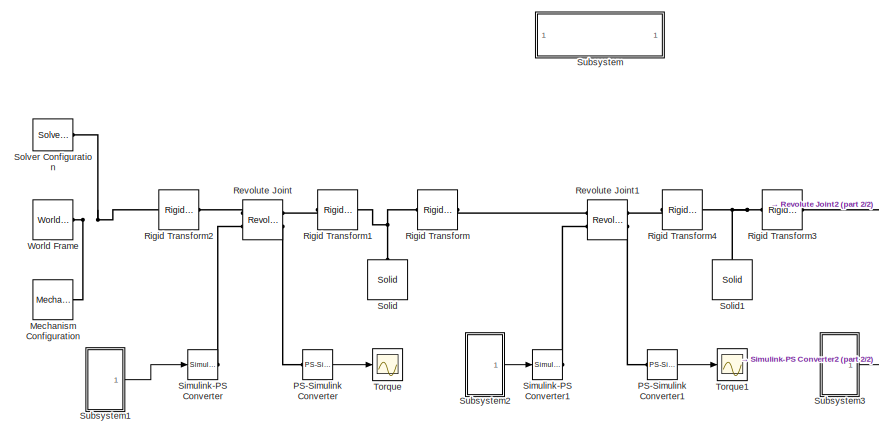
[diagram: root canvas - part 1/2, left side, full height]
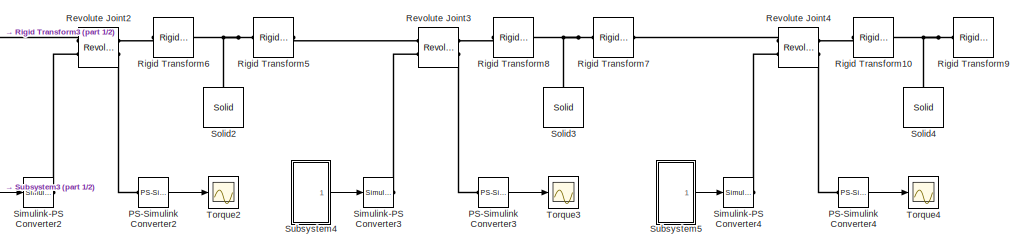
[diagram: root canvas - part 2/2, bottom right region]
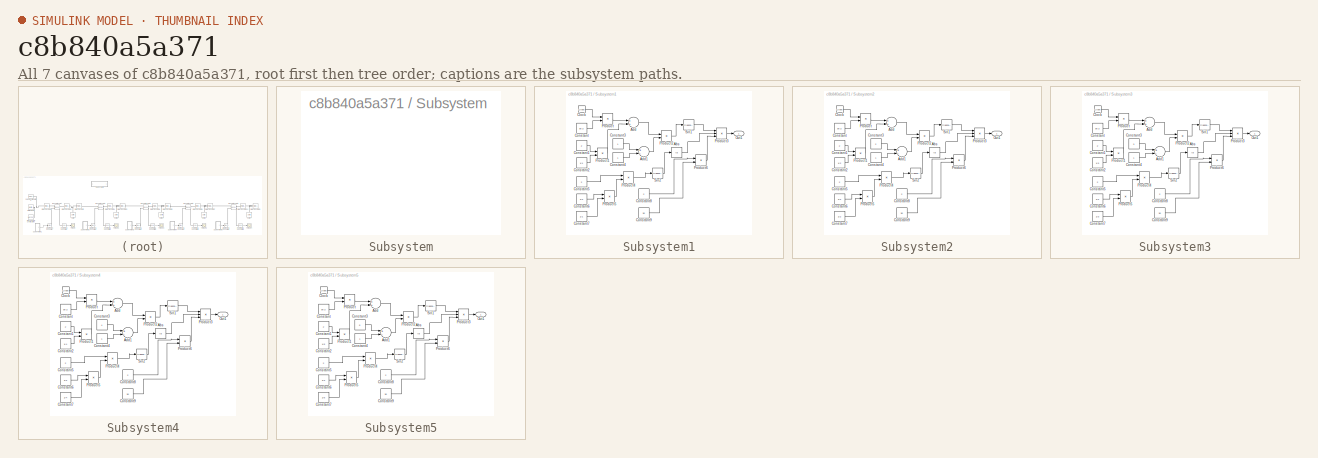
[diagram: thumbnail index - all 7 canvases of the model, root first then tree order]
MODEL slx_c8b840a5a371
KIND model
CONFIG AbsTol = auto
CONFIG EnableMultiTasking = on
CONFIG FixedStep = auto
CONFIG MaxStep = auto
CONFIG MinStep = auto
CONFIG PreLoadFcn = robotParameters;
CONFIG RelTol = 1e-3
CONFIG SampleTimeConstraint = Unconstrained
CONFIG Solver = VariableStepAuto
CONFIG SolverName = VariableStepAuto
CONFIG StartTime = 0.0
CONFIG StopTime = 10.0
BLOCK [Reference] Mechanism Configuration  REF=sm_lib/Utilities/Mechanism
Configuration
  Ports = [0, 0, 0, 0, 0, 0, 1]
  SourceBlock = sm_lib/Utilities/Mechanism\nConfiguration
  SourceProductBaseCode = MS
  SourceProductName = Simscape Multibody
  SourceType = Mechanism\nConfiguration
BLOCK [Reference] PS-Simulink Converter  REF=nesl_utility/PS-Simulink
Converter
  Ports = [0, 1, 0, 0, 0, 1]
  SourceBlock = nesl_utility/PS-Simulink\nConverter
  SourceProductBaseCode = SS
  SourceProductName = Simscape
  SourceType = PS-Simulink\nConverter
BLOCK [Reference] PS-Simulink Converter1  REF=nesl_utility/PS-Simulink
Converter
  Ports = [0, 1, 0, 0, 0, 1]
  SourceBlock = nesl_utility/PS-Simulink\nConverter
  SourceProductBaseCode = SS
  SourceProductName = Simscape
  SourceType = PS-Simulink\nConverter
BLOCK [Reference] PS-Simulink Converter2  REF=nesl_utility/PS-Simulink
Converter
  Ports = [0, 1, 0, 0, 0, 1]
  SourceBlock = nesl_utility/PS-Simulink\nConverter
  SourceProductBaseCode = SS
  SourceProductName = Simscape
  SourceType = PS-Simulink\nConverter
BLOCK [Reference] PS-Simulink Converter3  REF=nesl_utility/PS-Simulink
Converter
  Ports = [0, 1, 0, 0, 0, 1]
  SourceBlock = nesl_utility/PS-Simulink\nConverter
  SourceProductBaseCode = SS
  SourceProductName = Simscape
  SourceType = PS-Simulink\nConverter
BLOCK [Reference] PS-Simulink Converter4  REF=nesl_utility/PS-Simulink
Converter
  Ports = [0, 1, 0, 0, 0, 1]
  SourceBlock = nesl_utility/PS-Simulink\nConverter
  SourceProductBaseCode = SS
  SourceProductName = Simscape
  SourceType = PS-Simulink\nConverter
BLOCK [Reference] Revolute Joint  REF=sm_lib/Joints/Revolute Joint
  Ports = [0, 0, 0, 0, 0, 2, 2]
  SourceBlock = sm_lib/Joints/Revolute Joint
  SourceProductBaseCode = MS
  SourceProductName = Simscape Multibody
  SourceType = Revolute Joint
BLOCK [Reference] Revolute Joint1  REF=sm_lib/Joints/Revolute Joint
  Ports = [0, 0, 0, 0, 0, 2, 2]
  SourceBlock = sm_lib/Joints/Revolute Joint
  SourceProductBaseCode = MS
  SourceProductName = Simscape Multibody
  SourceType = Revolute Joint
BLOCK [Reference] Revolute Joint2  REF=sm_lib/Joints/Revolute Joint
  Ports = [0, 0, 0, 0, 0, 2, 2]
  SourceBlock = sm_lib/Joints/Revolute Joint
  SourceProductBaseCode = MS
  SourceProductName = Simscape Multibody
  SourceType = Revolute Joint
BLOCK [Reference] Revolute Joint3  REF=sm_lib/Joints/Revolute Joint
  Ports = [0, 0, 0, 0, 0, 2, 2]
  SourceBlock = sm_lib/Joints/Revolute Joint
  SourceProductBaseCode = MS
  SourceProductName = Simscape Multibody
  SourceType = Revolute Joint
BLOCK [Reference] Revolute Joint4  REF=sm_lib/Joints/Revolute Joint
  Ports = [0, 0, 0, 0, 0, 2, 2]
  SourceBlock = sm_lib/Joints/Revolute Joint
  SourceProductBaseCode = MS
  SourceProductName = Simscape Multibody
  SourceType = Revolute Joint
BLOCK [Reference] Rigid Transform  REF=sm_lib/Frames and
Transforms/Rigid
Transform
  Ports = [0, 0, 0, 0, 0, 1, 1]
  SourceBlock = sm_lib/Frames and\nTransforms/Rigid\nTransform
  SourceProductBaseCode = MS
  SourceProductName = Simscape Multibody
  SourceType = Rigid\nTransform
BLOCK [Reference] Rigid Transform1  REF=sm_lib/Frames and
Transforms/Rigid
Transform
  Ports = [0, 0, 0, 0, 0, 1, 1]
  SourceBlock = sm_lib/Frames and\nTransforms/Rigid\nTransform
  SourceProductBaseCode = MS
  SourceProductName = Simscape Multibody
  SourceType = Rigid\nTransform
BLOCK [Reference] Rigid Transform10  REF=sm_lib/Frames and
Transforms/Rigid
Transform
  Ports = [0, 0, 0, 0, 0, 1, 1]
  SourceBlock = sm_lib/Frames and\nTransforms/Rigid\nTransform
  SourceProductBaseCode = MS
  SourceProductName = Simscape Multibody
  SourceType = Rigid\nTransform
BLOCK [Reference] Rigid Transform2  REF=sm_lib/Frames and
Transforms/Rigid
Transform
  Ports = [0, 0, 0, 0, 0, 1, 1]
  SourceBlock = sm_lib/Frames and\nTransforms/Rigid\nTransform
  SourceProductBaseCode = MS
  SourceProductName = Simscape Multibody
  SourceType = Rigid\nTransform
BLOCK [Reference] Rigid Transform3  REF=sm_lib/Frames and
Transforms/Rigid
Transform
  Ports = [0, 0, 0, 0, 0, 1, 1]
  SourceBlock = sm_lib/Frames and\nTransforms/Rigid\nTransform
  SourceProductBaseCode = MS
  SourceProductName = Simscape Multibody
  SourceType = Rigid\nTransform
BLOCK [Reference] Rigid Transform4  REF=sm_lib/Frames and
Transforms/Rigid
Transform
  Ports = [0, 0, 0, 0, 0, 1, 1]
  SourceBlock = sm_lib/Frames and\nTransforms/Rigid\nTransform
  SourceProductBaseCode = MS
  SourceProductName = Simscape Multibody
  SourceType = Rigid\nTransform
BLOCK [Reference] Rigid Transform5  REF=sm_lib/Frames and
Transforms/Rigid
Transform
  Ports = [0, 0, 0, 0, 0, 1, 1]
  SourceBlock = sm_lib/Frames and\nTransforms/Rigid\nTransform
  SourceProductBaseCode = MS
  SourceProductName = Simscape Multibody
  SourceType = Rigid\nTransform
BLOCK [Reference] Rigid Transform6  REF=sm_lib/Frames and
Transforms/Rigid
Transform
  Ports = [0, 0, 0, 0, 0, 1, 1]
  SourceBlock = sm_lib/Frames and\nTransforms/Rigid\nTransform
  SourceProductBaseCode = MS
  SourceProductName = Simscape Multibody
  SourceType = Rigid\nTransform
BLOCK [Reference] Rigid Transform7  REF=sm_lib/Frames and
Transforms/Rigid
Transform
  Ports = [0, 0, 0, 0, 0, 1, 1]
  SourceBlock = sm_lib/Frames and\nTransforms/Rigid\nTransform
  SourceProductBaseCode = MS
  SourceProductName = Simscape Multibody
  SourceType = Rigid\nTransform
BLOCK [Reference] Rigid Transform8  REF=sm_lib/Frames and
Transforms/Rigid
Transform
  Ports = [0, 0, 0, 0, 0, 1, 1]
  SourceBlock = sm_lib/Frames and\nTransforms/Rigid\nTransform
  SourceProductBaseCode = MS
  SourceProductName = Simscape Multibody
  SourceType = Rigid\nTransform
BLOCK [Reference] Rigid Transform9  REF=sm_lib/Frames and
Transforms/Rigid
Transform
  Ports = [0, 0, 0, 0, 0, 1, 1]
  SourceBlock = sm_lib/Frames and\nTransforms/Rigid\nTransform
  SourceProductBaseCode = MS
  SourceProductName = Simscape Multibody
  SourceType = Rigid\nTransform
BLOCK [Reference] Simulink-PS Converter  REF=nesl_utility/Simulink-PS
Converter
  Ports = [1, 0, 0, 0, 0, 0, 1]
  SourceBlock = nesl_utility/Simulink-PS\nConverter
  SourceProductBaseCode = SS
  SourceProductName = Simscape
  SourceType = Simulink-PS\nConverter
BLOCK [Reference] Simulink-PS Converter1  REF=nesl_utility/Simulink-PS
Converter
  Ports = [1, 0, 0, 0, 0, 0, 1]
  SourceBlock = nesl_utility/Simulink-PS\nConverter
  SourceProductBaseCode = SS
  SourceProductName = Simscape
  SourceType = Simulink-PS\nConverter
BLOCK [Reference] Simulink-PS Converter2  REF=nesl_utility/Simulink-PS
Converter
  Ports = [1, 0, 0, 0, 0, 0, 1]
  SourceBlock = nesl_utility/Simulink-PS\nConverter
  SourceProductBaseCode = SS
  SourceProductName = Simscape
  SourceType = Simulink-PS\nConverter
BLOCK [Reference] Simulink-PS Converter3  REF=nesl_utility/Simulink-PS
Converter
  Ports = [1, 0, 0, 0, 0, 0, 1]
  SourceBlock = nesl_utility/Simulink-PS\nConverter
  SourceProductBaseCode = SS
  SourceProductName = Simscape
  SourceType = Simulink-PS\nConverter
BLOCK [Reference] Simulink-PS Converter4  REF=nesl_utility/Simulink-PS
Converter
  Ports = [1, 0, 0, 0, 0, 0, 1]
  SourceBlock = nesl_utility/Simulink-PS\nConverter
  SourceProductBaseCode = SS
  SourceProductName = Simscape
  SourceType = Simulink-PS\nConverter
BLOCK [Reference] Solid  REF=sm_lib/Body Elements/Solid
  Ports = [0, 0, 0, 0, 0, 0, 1]
  SourceBlock = sm_lib/Body Elements/Solid
  SourceProductBaseCode = MS
  SourceProductName = Simscape Multibody
  SourceType = Solid
BLOCK [Reference] Solid1  REF=sm_lib/Body Elements/Solid
  Ports = [0, 0, 0, 0, 0, 0, 1]
  SourceBlock = sm_lib/Body Elements/Solid
  SourceProductBaseCode = MS
  SourceProductName = Simscape Multibody
  SourceType = Solid
BLOCK [Reference] Solid2  REF=sm_lib/Body Elements/Solid
  Ports = [0, 0, 0, 0, 0, 0, 1]
  SourceBlock = sm_lib/Body Elements/Solid
  SourceProductBaseCode = MS
  SourceProductName = Simscape Multibody
  SourceType = Solid
BLOCK [Reference] Solid3  REF=sm_lib/Body Elements/Solid
  Ports = [0, 0, 0, 0, 0, 0, 1]
  SourceBlock = sm_lib/Body Elements/Solid
  SourceProductBaseCode = MS
  SourceProductName = Simscape Multibody
  SourceType = Solid
BLOCK [Reference] Solid4  REF=sm_lib/Body Elements/Solid
  Ports = [0, 0, 0, 0, 0, 0, 1]
  SourceBlock = sm_lib/Body Elements/Solid
  SourceProductBaseCode = MS
  SourceProductName = Simscape Multibody
  SourceType = Solid
BLOCK [Reference] Solver Configuration  REF=nesl_utility/Solver
Configuration
  Ports = [0, 0, 0, 0, 0, 0, 1]
  SourceBlock = nesl_utility/Solver\nConfiguration
  SourceProductBaseCode = SS
  SourceProductName = Simscape
  SourceType = Solver\nConfiguration
BLOCK [SubSystem] Subsystem
  OpenFcn = open_system('sm_lib')
  Ports = []
  RequestExecContextInheritance = off
  ShowPortLabels = none
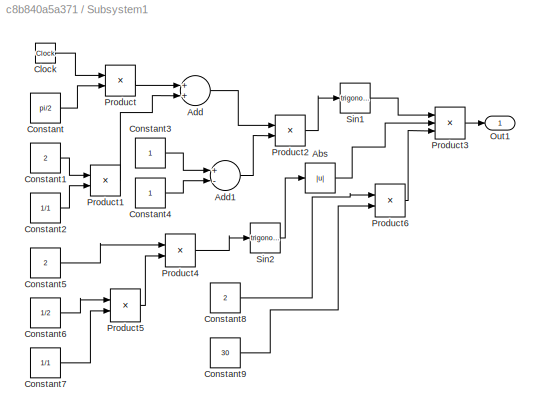
BLOCK [SubSystem] Subsystem1
  Ports = [0, 1]
  RequestExecContextInheritance = off
BLOCK [Abs] Subsystem1/Abs
  SaturateOnIntegerOverflow = off
BLOCK [Sum] Subsystem1/Add
  InputSameDT = off
  OutDataTypeStr = Inherit: Inherit via internal rule
  Ports = [2, 1]
  SaturateOnIntegerOverflow = off
BLOCK [Sum] Subsystem1/Add1
  InputSameDT = off
  Inputs = +-
  OutDataTypeStr = Inherit: Inherit via internal rule
  Ports = [2, 1]
  SaturateOnIntegerOverflow = off
BLOCK [Clock] Subsystem1/Clock
BLOCK [Constant] Subsystem1/Constant
  Value = pi/2
BLOCK [Constant] Subsystem1/Constant1
  Value = 2
BLOCK [Constant] Subsystem1/Constant2
  Value = 1/1
BLOCK [Constant] Subsystem1/Constant3
BLOCK [Constant] Subsystem1/Constant4
BLOCK [Constant] Subsystem1/Constant5
  Value = 2
BLOCK [Constant] Subsystem1/Constant6
  Value = 1/2
BLOCK [Constant] Subsystem1/Constant7
  Value = 1/1
BLOCK [Constant] Subsystem1/Constant8
  Value = 2
BLOCK [Constant] Subsystem1/Constant9
  Value = 30
BLOCK [Outport] Subsystem1/Out1
  IconDisplay = Port number
BLOCK [Product] Subsystem1/Product
  InputSameDT = off
  OutDataTypeStr = Inherit: Inherit via internal rule
  Ports = [2, 1]
  RndMeth = Floor
  SaturateOnIntegerOverflow = off
BLOCK [Product] Subsystem1/Product1
  InputSameDT = off
  OutDataTypeStr = Inherit: Inherit via internal rule
  Ports = [2, 1]
  RndMeth = Floor
  SaturateOnIntegerOverflow = off
BLOCK [Product] Subsystem1/Product2
  InputSameDT = off
  OutDataTypeStr = Inherit: Inherit via internal rule
  Ports = [2, 1]
  RndMeth = Floor
  SaturateOnIntegerOverflow = off
BLOCK [Product] Subsystem1/Product3
  InputSameDT = off
  Inputs = 3
  OutDataTypeStr = Inherit: Inherit via internal rule
  Ports = [3, 1]
  RndMeth = Floor
  SaturateOnIntegerOverflow = off
BLOCK [Product] Subsystem1/Product4
  InputSameDT = off
  OutDataTypeStr = Inherit: Inherit via internal rule
  Ports = [2, 1]
  RndMeth = Floor
  SaturateOnIntegerOverflow = off
BLOCK [Product] Subsystem1/Product5
  InputSameDT = off
  OutDataTypeStr = Inherit: Inherit via internal rule
  Ports = [2, 1]
  RndMeth = Floor
  SaturateOnIntegerOverflow = off
BLOCK [Product] Subsystem1/Product6
  InputSameDT = off
  OutDataTypeStr = Inherit: Inherit via internal rule
  Ports = [2, 1]
  RndMeth = Floor
  SaturateOnIntegerOverflow = off
BLOCK [Trigonometry] Subsystem1/Sin1
  Ports = [1, 1]
BLOCK [Trigonometry] Subsystem1/Sin2
  Ports = [1, 1]
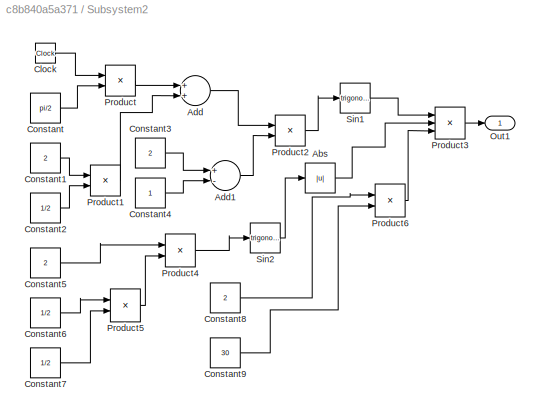
BLOCK [SubSystem] Subsystem2
  Ports = [0, 1]
  RequestExecContextInheritance = off
BLOCK [Abs] Subsystem2/Abs
  SaturateOnIntegerOverflow = off
BLOCK [Sum] Subsystem2/Add
  InputSameDT = off
  OutDataTypeStr = Inherit: Inherit via internal rule
  Ports = [2, 1]
  SaturateOnIntegerOverflow = off
BLOCK [Sum] Subsystem2/Add1
  InputSameDT = off
  Inputs = +-
  OutDataTypeStr = Inherit: Inherit via internal rule
  Ports = [2, 1]
  SaturateOnIntegerOverflow = off
BLOCK [Clock] Subsystem2/Clock
BLOCK [Constant] Subsystem2/Constant
  Value = pi/2
BLOCK [Constant] Subsystem2/Constant1
  Value = 2
BLOCK [Constant] Subsystem2/Constant2
  Value = 1/2
BLOCK [Constant] Subsystem2/Constant3
  Value = 2
BLOCK [Constant] Subsystem2/Constant4
BLOCK [Constant] Subsystem2/Constant5
  Value = 2
BLOCK [Constant] Subsystem2/Constant6
  Value = 1/2
BLOCK [Constant] Subsystem2/Constant7
  Value = 1/2
BLOCK [Constant] Subsystem2/Constant8
  Value = 2
BLOCK [Constant] Subsystem2/Constant9
  Value = 30
BLOCK [Outport] Subsystem2/Out1
  IconDisplay = Port number
BLOCK [Product] Subsystem2/Product
  InputSameDT = off
  OutDataTypeStr = Inherit: Inherit via internal rule
  Ports = [2, 1]
  RndMeth = Floor
  SaturateOnIntegerOverflow = off
BLOCK [Product] Subsystem2/Product1
  InputSameDT = off
  OutDataTypeStr = Inherit: Inherit via internal rule
  Ports = [2, 1]
  RndMeth = Floor
  SaturateOnIntegerOverflow = off
BLOCK [Product] Subsystem2/Product2
  InputSameDT = off
  OutDataTypeStr = Inherit: Inherit via internal rule
  Ports = [2, 1]
  RndMeth = Floor
  SaturateOnIntegerOverflow = off
BLOCK [Product] Subsystem2/Product3
  InputSameDT = off
  Inputs = 3
  OutDataTypeStr = Inherit: Inherit via internal rule
  Ports = [3, 1]
  RndMeth = Floor
  SaturateOnIntegerOverflow = off
BLOCK [Product] Subsystem2/Product4
  InputSameDT = off
  OutDataTypeStr = Inherit: Inherit via internal rule
  Ports = [2, 1]
  RndMeth = Floor
  SaturateOnIntegerOverflow = off
BLOCK [Product] Subsystem2/Product5
  InputSameDT = off
  OutDataTypeStr = Inherit: Inherit via internal rule
  Ports = [2, 1]
  RndMeth = Floor
  SaturateOnIntegerOverflow = off
BLOCK [Product] Subsystem2/Product6
  InputSameDT = off
  OutDataTypeStr = Inherit: Inherit via internal rule
  Ports = [2, 1]
  RndMeth = Floor
  SaturateOnIntegerOverflow = off
BLOCK [Trigonometry] Subsystem2/Sin1
  Ports = [1, 1]
BLOCK [Trigonometry] Subsystem2/Sin2
  Ports = [1, 1]
BLOCK [SubSystem] Subsystem3
  Ports = [0, 1]
  RequestExecContextInheritance = off
BLOCK [Abs] Subsystem3/Abs
  SaturateOnIntegerOverflow = off
BLOCK [Sum] Subsystem3/Add
  InputSameDT = off
  OutDataTypeStr = Inherit: Inherit via internal rule
  Ports = [2, 1]
  SaturateOnIntegerOverflow = off
BLOCK [Sum] Subsystem3/Add1
  InputSameDT = off
  Inputs = +-
  OutDataTypeStr = Inherit: Inherit via internal rule
  Ports = [2, 1]
  SaturateOnIntegerOverflow = off
BLOCK [Clock] Subsystem3/Clock
BLOCK [Constant] Subsystem3/Constant
  Value = pi/2
BLOCK [Constant] Subsystem3/Constant1
  Value = 2
BLOCK [Constant] Subsystem3/Constant2
  Value = 1/3
BLOCK [Constant] Subsystem3/Constant3
  Value = 3
BLOCK [Constant] Subsystem3/Constant4
BLOCK [Constant] Subsystem3/Constant5
  Value = 2
BLOCK [Constant] Subsystem3/Constant6
  Value = 1/2
BLOCK [Constant] Subsystem3/Constant7
  Value = 1/3
BLOCK [Constant] Subsystem3/Constant8
  Value = 2
BLOCK [Constant] Subsystem3/Constant9
  Value = 30
BLOCK [Outport] Subsystem3/Out1
  IconDisplay = Port number
BLOCK [Product] Subsystem3/Product
  InputSameDT = off
  OutDataTypeStr = Inherit: Inherit via internal rule
  Ports = [2, 1]
  RndMeth = Floor
  SaturateOnIntegerOverflow = off
BLOCK [Product] Subsystem3/Product1
  InputSameDT = off
  OutDataTypeStr = Inherit: Inherit via internal rule
  Ports = [2, 1]
  RndMeth = Floor
  SaturateOnIntegerOverflow = off
BLOCK [Product] Subsystem3/Product2
  InputSameDT = off
  OutDataTypeStr = Inherit: Inherit via internal rule
  Ports = [2, 1]
  RndMeth = Floor
  SaturateOnIntegerOverflow = off
BLOCK [Product] Subsystem3/Product3
  InputSameDT = off
  Inputs = 3
  OutDataTypeStr = Inherit: Inherit via internal rule
  Ports = [3, 1]
  RndMeth = Floor
  SaturateOnIntegerOverflow = off
BLOCK [Product] Subsystem3/Product4
  InputSameDT = off
  OutDataTypeStr = Inherit: Inherit via internal rule
  Ports = [2, 1]
  RndMeth = Floor
  SaturateOnIntegerOverflow = off
BLOCK [Product] Subsystem3/Product5
  InputSameDT = off
  OutDataTypeStr = Inherit: Inherit via internal rule
  Ports = [2, 1]
  RndMeth = Floor
  SaturateOnIntegerOverflow = off
BLOCK [Product] Subsystem3/Product6
  InputSameDT = off
  OutDataTypeStr = Inherit: Inherit via internal rule
  Ports = [2, 1]
  RndMeth = Floor
  SaturateOnIntegerOverflow = off
BLOCK [Trigonometry] Subsystem3/Sin1
  Ports = [1, 1]
BLOCK [Trigonometry] Subsystem3/Sin2
  Ports = [1, 1]
BLOCK [SubSystem] Subsystem4
  Ports = [0, 1]
  RequestExecContextInheritance = off
BLOCK [Abs] Subsystem4/Abs
  SaturateOnIntegerOverflow = off
BLOCK [Sum] Subsystem4/Add
  InputSameDT = off
  OutDataTypeStr = Inherit: Inherit via internal rule
  Ports = [2, 1]
  SaturateOnIntegerOverflow = off
BLOCK [Sum] Subsystem4/Add1
  InputSameDT = off
  Inputs = +-
  OutDataTypeStr = Inherit: Inherit via internal rule
  Ports = [2, 1]
  SaturateOnIntegerOverflow = off
BLOCK [Clock] Subsystem4/Clock
BLOCK [Constant] Subsystem4/Constant
  Value = pi/2
BLOCK [Constant] Subsystem4/Constant1
  Value = 2
BLOCK [Constant] Subsystem4/Constant2
  Value = 1/4
BLOCK [Constant] Subsystem4/Constant3
  Value = 4
BLOCK [Constant] Subsystem4/Constant4
BLOCK [Constant] Subsystem4/Constant5
  Value = 2
BLOCK [Constant] Subsystem4/Constant6
  Value = 1/2
BLOCK [Constant] Subsystem4/Constant7
  Value = 1/4
BLOCK [Constant] Subsystem4/Constant8
  Value = 2
BLOCK [Constant] Subsystem4/Constant9
  Value = 30
BLOCK [Outport] Subsystem4/Out1
  IconDisplay = Port number
BLOCK [Product] Subsystem4/Product
  InputSameDT = off
  OutDataTypeStr = Inherit: Inherit via internal rule
  Ports = [2, 1]
  RndMeth = Floor
  SaturateOnIntegerOverflow = off
BLOCK [Product] Subsystem4/Product1
  InputSameDT = off
  OutDataTypeStr = Inherit: Inherit via internal rule
  Ports = [2, 1]
  RndMeth = Floor
  SaturateOnIntegerOverflow = off
BLOCK [Product] Subsystem4/Product2
  InputSameDT = off
  OutDataTypeStr = Inherit: Inherit via internal rule
  Ports = [2, 1]
  RndMeth = Floor
  SaturateOnIntegerOverflow = off
BLOCK [Product] Subsystem4/Product3
  InputSameDT = off
  Inputs = 3
  OutDataTypeStr = Inherit: Inherit via internal rule
  Ports = [3, 1]
  RndMeth = Floor
  SaturateOnIntegerOverflow = off
BLOCK [Product] Subsystem4/Product4
  InputSameDT = off
  OutDataTypeStr = Inherit: Inherit via internal rule
  Ports = [2, 1]
  RndMeth = Floor
  SaturateOnIntegerOverflow = off
BLOCK [Product] Subsystem4/Product5
  InputSameDT = off
  OutDataTypeStr = Inherit: Inherit via internal rule
  Ports = [2, 1]
  RndMeth = Floor
  SaturateOnIntegerOverflow = off
BLOCK [Product] Subsystem4/Product6
  InputSameDT = off
  OutDataTypeStr = Inherit: Inherit via internal rule
  Ports = [2, 1]
  RndMeth = Floor
  SaturateOnIntegerOverflow = off
BLOCK [Trigonometry] Subsystem4/Sin1
  Ports = [1, 1]
BLOCK [Trigonometry] Subsystem4/Sin2
  Ports = [1, 1]
BLOCK [SubSystem] Subsystem5
  Ports = [0, 1]
  RequestExecContextInheritance = off
BLOCK [Abs] Subsystem5/Abs
  SaturateOnIntegerOverflow = off
BLOCK [Sum] Subsystem5/Add
  InputSameDT = off
  OutDataTypeStr = Inherit: Inherit via internal rule
  Ports = [2, 1]
  SaturateOnIntegerOverflow = off
BLOCK [Sum] Subsystem5/Add1
  InputSameDT = off
  Inputs = +-
  OutDataTypeStr = Inherit: Inherit via internal rule
  Ports = [2, 1]
  SaturateOnIntegerOverflow = off
BLOCK [Clock] Subsystem5/Clock
BLOCK [Constant] Subsystem5/Constant
  Value = pi/2
BLOCK [Constant] Subsystem5/Constant1
  Value = 2
BLOCK [Constant] Subsystem5/Constant2
  Value = 1/5
BLOCK [Constant] Subsystem5/Constant3
  Value = 5
BLOCK [Constant] Subsystem5/Constant4
BLOCK [Constant] Subsystem5/Constant5
  Value = 2
BLOCK [Constant] Subsystem5/Constant6
  Value = 1/2
BLOCK [Constant] Subsystem5/Constant7
  Value = 1/5
BLOCK [Constant] Subsystem5/Constant8
  Value = 2
BLOCK [Constant] Subsystem5/Constant9
  Value = 30
BLOCK [Outport] Subsystem5/Out1
  IconDisplay = Port number
BLOCK [Product] Subsystem5/Product
  InputSameDT = off
  OutDataTypeStr = Inherit: Inherit via internal rule
  Ports = [2, 1]
  RndMeth = Floor
  SaturateOnIntegerOverflow = off
BLOCK [Product] Subsystem5/Product1
  InputSameDT = off
  OutDataTypeStr = Inherit: Inherit via internal rule
  Ports = [2, 1]
  RndMeth = Floor
  SaturateOnIntegerOverflow = off
BLOCK [Product] Subsystem5/Product2
  InputSameDT = off
  OutDataTypeStr = Inherit: Inherit via internal rule
  Ports = [2, 1]
  RndMeth = Floor
  SaturateOnIntegerOverflow = off
BLOCK [Product] Subsystem5/Product3
  InputSameDT = off
  Inputs = 3
  OutDataTypeStr = Inherit: Inherit via internal rule
  Ports = [3, 1]
  RndMeth = Floor
  SaturateOnIntegerOverflow = off
BLOCK [Product] Subsystem5/Product4
  InputSameDT = off
  OutDataTypeStr = Inherit: Inherit via internal rule
  Ports = [2, 1]
  RndMeth = Floor
  SaturateOnIntegerOverflow = off
BLOCK [Product] Subsystem5/Product5
  InputSameDT = off
  OutDataTypeStr = Inherit: Inherit via internal rule
  Ports = [2, 1]
  RndMeth = Floor
  SaturateOnIntegerOverflow = off
BLOCK [Product] Subsystem5/Product6
  InputSameDT = off
  OutDataTypeStr = Inherit: Inherit via internal rule
  Ports = [2, 1]
  RndMeth = Floor
  SaturateOnIntegerOverflow = off
BLOCK [Trigonometry] Subsystem5/Sin1
  Ports = [1, 1]
BLOCK [Trigonometry] Subsystem5/Sin2
  Ports = [1, 1]
BLOCK [Scope] Torque
  Floating = off
  NumInputPorts = 1
  Ports = [1]
  ScopeSpecificationString = C++SS(StrPVP('Location','[188, 365, 512, 604]'),StrPVP('Open','off'),MxPVP('AxesTitles',53,'struct(''axes1'',''%<SignalLabel>'')'),StrPVP('LimitDataPoints','on'),StrPVP('DataFormat','Array'),StrPVP('Decimation','1'),StrPVP('BlockParamSampleInput','off'))
BLOCK [Scope] Torque1
  Floating = off
  NumInputPorts = 1
  Ports = [1]
  ScopeSpecificationString = Simulink.scopes.TimeScopeBlockCfg('CurrentConfiguration', extmgr.ConfigurationSet(extmgr.Configuration('Core','General UI',true),extmgr.Configuration('Core','Source UI',true),extmgr.Configuration('Sources','WiredSimulink',true,'DataLoggingLimitDataPoints',true,'DataLoggingSaveFormat','Array','DataLoggingDecimation','1','DataLoggingDecimateData',true,'DataLoggingVariableName','ScopeData1'),extmgr.C...<+899ch>
BLOCK [Scope] Torque2
  Floating = off
  NumInputPorts = 1
  Ports = [1]
  ScopeSpecificationString = Simulink.scopes.TimeScopeBlockCfg('CurrentConfiguration', extmgr.ConfigurationSet(extmgr.Configuration('Core','General UI',true),extmgr.Configuration('Core','Source UI',true),extmgr.Configuration('Sources','WiredSimulink',true,'DataLoggingLimitDataPoints',true,'DataLoggingSaveFormat','Array','DataLoggingDecimation','1','DataLoggingDecimateData',true,'DataLoggingVariableName','ScopeData2'),extmgr.C...<+899ch>
BLOCK [Scope] Torque3
  Floating = off
  NumInputPorts = 1
  Ports = [1]
  ScopeSpecificationString = Simulink.scopes.TimeScopeBlockCfg('CurrentConfiguration', extmgr.ConfigurationSet(extmgr.Configuration('Core','General UI',true),extmgr.Configuration('Core','Source UI',true),extmgr.Configuration('Sources','WiredSimulink',true,'DataLoggingLimitDataPoints',true,'DataLoggingSaveFormat','Array','DataLoggingDecimation','1','DataLoggingDecimateData',true,'DataLoggingVariableName','ScopeData3'),extmgr.C...<+899ch>
BLOCK [Scope] Torque4
  Floating = off
  NumInputPorts = 1
  Ports = [1]
  ScopeSpecificationString = Simulink.scopes.TimeScopeBlockCfg('CurrentConfiguration', extmgr.ConfigurationSet(extmgr.Configuration('Core','General UI',true),extmgr.Configuration('Core','Source UI',true),extmgr.Configuration('Sources','WiredSimulink',true,'DataLoggingLimitDataPoints',true,'DataLoggingSaveFormat','Array','DataLoggingDecimation','1','DataLoggingDecimateData',true,'DataLoggingVariableName','ScopeData4'),extmgr.C...<+899ch>
BLOCK [Reference] World Frame  REF=sm_lib/Frames and
Transforms/World Frame
  Ports = [0, 0, 0, 0, 0, 0, 1]
  SourceBlock = sm_lib/Frames and\nTransforms/World Frame
  SourceProductBaseCode = MS
  SourceProductName = Simscape Multibody
  SourceType = World Frame
LINE PS-Simulink Converter1:1 -> Torque1:1
LINE PS-Simulink Converter2:1 -> Torque2:1
LINE PS-Simulink Converter3:1 -> Torque3:1
LINE PS-Simulink Converter4:1 -> Torque4:1
LINE PS-Simulink Converter:1 -> Torque:1
LINE Subsystem1/Abs:1 -> Subsystem1/Product3:2
LINE Subsystem1/Add1:1 -> Subsystem1/Product2:2
LINE Subsystem1/Add:1 -> Subsystem1/Product2:1
LINE Subsystem1/Clock:1 -> Subsystem1/Product:1
LINE Subsystem1/Constant1:1 -> Subsystem1/Product1:1
LINE Subsystem1/Constant2:1 -> Subsystem1/Product1:2
LINE Subsystem1/Constant3:1 -> Subsystem1/Add1:1
LINE Subsystem1/Constant4:1 -> Subsystem1/Add1:2
LINE Subsystem1/Constant5:1 -> Subsystem1/Product4:1
LINE Subsystem1/Constant6:1 -> Subsystem1/Product5:1
LINE Subsystem1/Constant7:1 -> Subsystem1/Product5:2
LINE Subsystem1/Constant8:1 -> Subsystem1/Product6:1
LINE Subsystem1/Constant9:1 -> Subsystem1/Product6:2
LINE Subsystem1/Constant:1 -> Subsystem1/Product:2
LINE Subsystem1/Product1:1 -> Subsystem1/Add:2
LINE Subsystem1/Product2:1 -> Subsystem1/Sin1:1
LINE Subsystem1/Product3:1 -> Subsystem1/Out1:1
LINE Subsystem1/Product4:1 -> Subsystem1/Sin2:1
LINE Subsystem1/Product5:1 -> Subsystem1/Product4:2
LINE Subsystem1/Product6:1 -> Subsystem1/Product3:3
LINE Subsystem1/Product:1 -> Subsystem1/Add:1
LINE Subsystem1/Sin1:1 -> Subsystem1/Product3:1
LINE Subsystem1/Sin2:1 -> Subsystem1/Abs:1
LINE Subsystem1:1 -> Simulink-PS Converter:1
LINE Subsystem2/Abs:1 -> Subsystem2/Product3:2
LINE Subsystem2/Add1:1 -> Subsystem2/Product2:2
LINE Subsystem2/Add:1 -> Subsystem2/Product2:1
LINE Subsystem2/Clock:1 -> Subsystem2/Product:1
LINE Subsystem2/Constant1:1 -> Subsystem2/Product1:1
LINE Subsystem2/Constant2:1 -> Subsystem2/Product1:2
LINE Subsystem2/Constant3:1 -> Subsystem2/Add1:1
LINE Subsystem2/Constant4:1 -> Subsystem2/Add1:2
LINE Subsystem2/Constant5:1 -> Subsystem2/Product4:1
LINE Subsystem2/Constant6:1 -> Subsystem2/Product5:1
LINE Subsystem2/Constant7:1 -> Subsystem2/Product5:2
LINE Subsystem2/Constant8:1 -> Subsystem2/Product6:1
LINE Subsystem2/Constant9:1 -> Subsystem2/Product6:2
LINE Subsystem2/Constant:1 -> Subsystem2/Product:2
LINE Subsystem2/Product1:1 -> Subsystem2/Add:2
LINE Subsystem2/Product2:1 -> Subsystem2/Sin1:1
LINE Subsystem2/Product3:1 -> Subsystem2/Out1:1
LINE Subsystem2/Product4:1 -> Subsystem2/Sin2:1
LINE Subsystem2/Product5:1 -> Subsystem2/Product4:2
LINE Subsystem2/Product6:1 -> Subsystem2/Product3:3
LINE Subsystem2/Product:1 -> Subsystem2/Add:1
LINE Subsystem2/Sin1:1 -> Subsystem2/Product3:1
LINE Subsystem2/Sin2:1 -> Subsystem2/Abs:1
LINE Subsystem2:1 -> Simulink-PS Converter1:1
LINE Subsystem3/Abs:1 -> Subsystem3/Product3:2
LINE Subsystem3/Add1:1 -> Subsystem3/Product2:2
LINE Subsystem3/Add:1 -> Subsystem3/Product2:1
LINE Subsystem3/Clock:1 -> Subsystem3/Product:1
LINE Subsystem3/Constant1:1 -> Subsystem3/Product1:1
LINE Subsystem3/Constant2:1 -> Subsystem3/Product1:2
LINE Subsystem3/Constant3:1 -> Subsystem3/Add1:1
LINE Subsystem3/Constant4:1 -> Subsystem3/Add1:2
LINE Subsystem3/Constant5:1 -> Subsystem3/Product4:1
LINE Subsystem3/Constant6:1 -> Subsystem3/Product5:1
LINE Subsystem3/Constant7:1 -> Subsystem3/Product5:2
LINE Subsystem3/Constant8:1 -> Subsystem3/Product6:1
LINE Subsystem3/Constant9:1 -> Subsystem3/Product6:2
LINE Subsystem3/Constant:1 -> Subsystem3/Product:2
LINE Subsystem3/Product1:1 -> Subsystem3/Add:2
LINE Subsystem3/Product2:1 -> Subsystem3/Sin1:1
LINE Subsystem3/Product3:1 -> Subsystem3/Out1:1
LINE Subsystem3/Product4:1 -> Subsystem3/Sin2:1
LINE Subsystem3/Product5:1 -> Subsystem3/Product4:2
LINE Subsystem3/Product6:1 -> Subsystem3/Product3:3
LINE Subsystem3/Product:1 -> Subsystem3/Add:1
LINE Subsystem3/Sin1:1 -> Subsystem3/Product3:1
LINE Subsystem3/Sin2:1 -> Subsystem3/Abs:1
LINE Subsystem3:1 -> Simulink-PS Converter2:1
LINE Subsystem4/Abs:1 -> Subsystem4/Product3:2
LINE Subsystem4/Add1:1 -> Subsystem4/Product2:2
LINE Subsystem4/Add:1 -> Subsystem4/Product2:1
LINE Subsystem4/Clock:1 -> Subsystem4/Product:1
LINE Subsystem4/Constant1:1 -> Subsystem4/Product1:1
LINE Subsystem4/Constant2:1 -> Subsystem4/Product1:2
LINE Subsystem4/Constant3:1 -> Subsystem4/Add1:1
LINE Subsystem4/Constant4:1 -> Subsystem4/Add1:2
LINE Subsystem4/Constant5:1 -> Subsystem4/Product4:1
LINE Subsystem4/Constant6:1 -> Subsystem4/Product5:1
LINE Subsystem4/Constant7:1 -> Subsystem4/Product5:2
LINE Subsystem4/Constant8:1 -> Subsystem4/Product6:1
LINE Subsystem4/Constant9:1 -> Subsystem4/Product6:2
LINE Subsystem4/Constant:1 -> Subsystem4/Product:2
LINE Subsystem4/Product1:1 -> Subsystem4/Add:2
LINE Subsystem4/Product2:1 -> Subsystem4/Sin1:1
LINE Subsystem4/Product3:1 -> Subsystem4/Out1:1
LINE Subsystem4/Product4:1 -> Subsystem4/Sin2:1
LINE Subsystem4/Product5:1 -> Subsystem4/Product4:2
LINE Subsystem4/Product6:1 -> Subsystem4/Product3:3
LINE Subsystem4/Product:1 -> Subsystem4/Add:1
LINE Subsystem4/Sin1:1 -> Subsystem4/Product3:1
LINE Subsystem4/Sin2:1 -> Subsystem4/Abs:1
LINE Subsystem4:1 -> Simulink-PS Converter3:1
LINE Subsystem5/Abs:1 -> Subsystem5/Product3:2
LINE Subsystem5/Add1:1 -> Subsystem5/Product2:2
LINE Subsystem5/Add:1 -> Subsystem5/Product2:1
LINE Subsystem5/Clock:1 -> Subsystem5/Product:1
LINE Subsystem5/Constant1:1 -> Subsystem5/Product1:1
LINE Subsystem5/Constant2:1 -> Subsystem5/Product1:2
LINE Subsystem5/Constant3:1 -> Subsystem5/Add1:1
LINE Subsystem5/Constant4:1 -> Subsystem5/Add1:2
LINE Subsystem5/Constant5:1 -> Subsystem5/Product4:1
LINE Subsystem5/Constant6:1 -> Subsystem5/Product5:1
LINE Subsystem5/Constant7:1 -> Subsystem5/Product5:2
LINE Subsystem5/Constant8:1 -> Subsystem5/Product6:1
LINE Subsystem5/Constant9:1 -> Subsystem5/Product6:2
LINE Subsystem5/Constant:1 -> Subsystem5/Product:2
LINE Subsystem5/Product1:1 -> Subsystem5/Add:2
LINE Subsystem5/Product2:1 -> Subsystem5/Sin1:1
LINE Subsystem5/Product3:1 -> Subsystem5/Out1:1
LINE Subsystem5/Product4:1 -> Subsystem5/Sin2:1
LINE Subsystem5/Product5:1 -> Subsystem5/Product4:2
LINE Subsystem5/Product6:1 -> Subsystem5/Product3:3
LINE Subsystem5/Product:1 -> Subsystem5/Add:1
LINE Subsystem5/Sin1:1 -> Subsystem5/Product3:1
LINE Subsystem5/Sin2:1 -> Subsystem5/Abs:1
LINE Subsystem5:1 -> Simulink-PS Converter4:1
PNET net1: Mechanism Configuration:RConn1 -- Rigid Transform2:LConn1 -- Solver Configuration:RConn1 -- World Frame:RConn1
PLINE PS-Simulink Converter1:LConn1 -- Revolute Joint1:RConn2
PLINE PS-Simulink Converter2:LConn1 -- Revolute Joint2:RConn2
PLINE PS-Simulink Converter3:LConn1 -- Revolute Joint3:RConn2
PLINE PS-Simulink Converter4:LConn1 -- Revolute Joint4:RConn2
PLINE PS-Simulink Converter:LConn1 -- Revolute Joint:RConn2
PLINE Revolute Joint1:LConn1 -- Rigid Transform:RConn1
PLINE Revolute Joint1:LConn2 -- Simulink-PS Converter1:RConn1
PLINE Revolute Joint1:RConn1 -- Rigid Transform4:LConn1
PLINE Revolute Joint2:LConn1 -- Rigid Transform3:RConn1
PLINE Revolute Joint2:LConn2 -- Simulink-PS Converter2:RConn1
PLINE Revolute Joint2:RConn1 -- Rigid Transform6:LConn1
PLINE Revolute Joint3:LConn1 -- Rigid Transform5:RConn1
PLINE Revolute Joint3:LConn2 -- Simulink-PS Converter3:RConn1
PLINE Revolute Joint3:RConn1 -- Rigid Transform8:LConn1
PLINE Revolute Joint4:LConn1 -- Rigid Transform7:RConn1
PLINE Revolute Joint4:LConn2 -- Simulink-PS Converter4:RConn1
PLINE Revolute Joint4:RConn1 -- Rigid Transform10:LConn1
PLINE Revolute Joint:LConn1 -- Rigid Transform2:RConn1
PLINE Revolute Joint:LConn2 -- Simulink-PS Converter:RConn1
PLINE Revolute Joint:RConn1 -- Rigid Transform1:LConn1
PNET net2: Rigid Transform10:RConn1 -- Rigid Transform9:LConn1 -- Solid4:RConn1
PNET net3: Rigid Transform1:RConn1 -- Rigid Transform:LConn1 -- Solid:RConn1
PNET net4: Rigid Transform3:LConn1 -- Rigid Transform4:RConn1 -- Solid1:RConn1
PNET net5: Rigid Transform5:LConn1 -- Rigid Transform6:RConn1 -- Solid2:RConn1
PNET net6: Rigid Transform7:LConn1 -- Rigid Transform8:RConn1 -- Solid3:RConn1
note: PNET lines group multi-terminal physical nets as a canonical sorted terminal list (undirected conserving connections); 2-terminal nets keep the pairwise PLINE form
